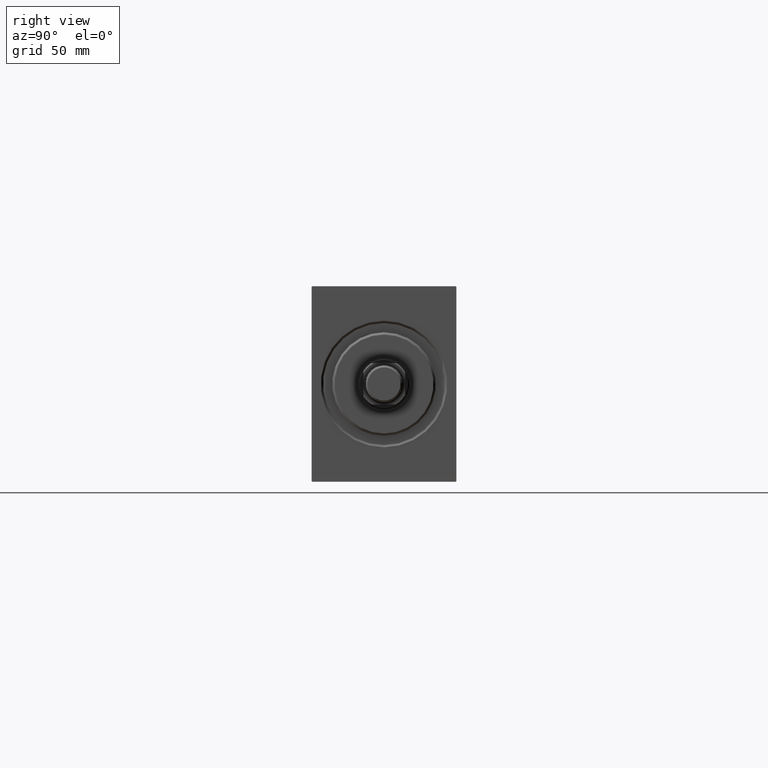
[diagram: clean part render]
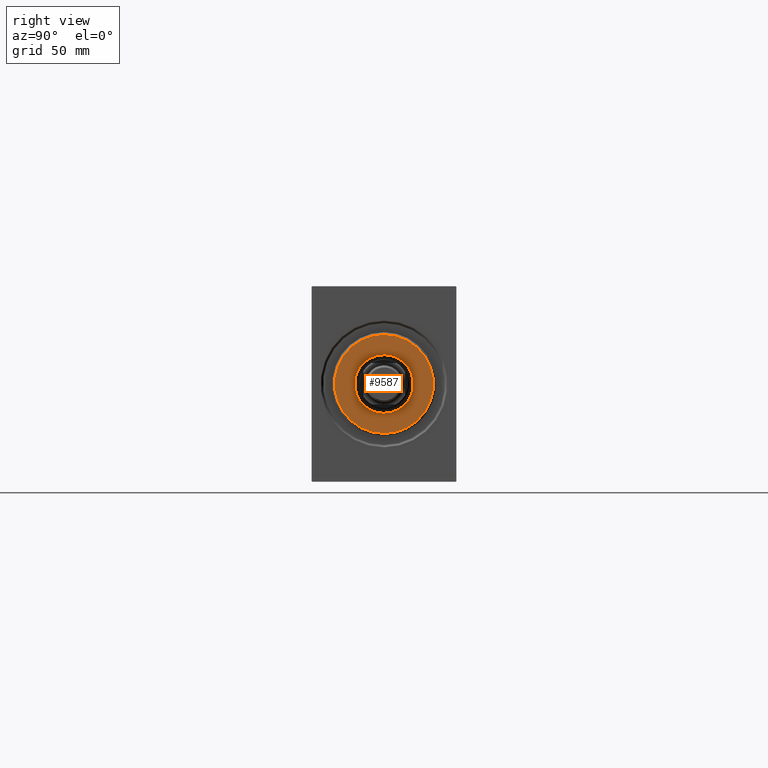
[diagram: same view with one face highlighted and labeled with its STEP entity id]
A machine part, right view. The second image highlights one B-rep face of the part: STEP entity #9587.
In plain terms, the highlighted planar face has unit normal (1, 0, 0).
Its self-contained STEP definition (entity closure, byte-faithful):
#957 = EDGE_LOOP ( 'NONE', ( #16686, #5684 ) ) ;
#2134 = EDGE_CURVE ( 'NONE', #30765, #30640, #21476, .T. ) ;
#3914 = DIRECTION ( 'NONE',  ( 1.000000000000000000, -0.000000000000000000, 0.000000000000000000 ) ) ;
#4622 = DIRECTION ( 'NONE',  ( 1.000000000000000000, -0.000000000000000000, 0.000000000000000000 ) ) ;
#5684 = ORIENTED_EDGE ( 'NONE', *, *, #33679, .T. ) ;
#6369 = DIRECTION ( 'NONE',  ( 0.000000000000000000, 0.000000000000000000, -1.000000000000000000 ) ) ;
#8024 = ORIENTED_EDGE ( 'NONE', *, *, #16732, .T. ) ;
#8605 = PLANE ( 'NONE',  #28939 ) ;
#9470 = DIRECTION ( 'NONE',  ( -1.000000000000000000, 0.000000000000000000, -0.000000000000000000 ) ) ;
#9550 = CARTESIAN_POINT ( 'NONE',  ( 3.000000000000000000, 0.000000000000000000, 21.50000000000001066 ) ) ;
#9587 = ADVANCED_FACE ( 'NONE', ( #34897, #28932 ), #8605, .T. ) ;
#10033 = CARTESIAN_POINT ( 'NONE',  ( 3.000000000000000000, 0.000000000000000000, 12.75000000000000000 ) ) ;
#10328 = VERTEX_POINT ( 'NONE', #9550 ) ;
#11339 = EDGE_LOOP ( 'NONE', ( #18961, #8024 ) ) ;
#11370 = DIRECTION ( 'NONE',  ( 0.000000000000000000, 0.000000000000000000, -1.000000000000000000 ) ) ;
#11610 = AXIS2_PLACEMENT_3D ( 'NONE', #12784, #9470, #13439 ) ;
#12470 = CARTESIAN_POINT ( 'NONE',  ( 3.000000000000000000, 1.561424668912874914E-15, -12.75000000000000000 ) ) ;
#12784 = CARTESIAN_POINT ( 'NONE',  ( 3.000000000000000000, 0.000000000000000000, 0.000000000000000000 ) ) ;
#13439 = DIRECTION ( 'NONE',  ( 0.000000000000000000, 0.000000000000000000, -1.000000000000000000 ) ) ;
#14686 = DIRECTION ( 'NONE',  ( 1.000000000000000000, -0.000000000000000000, 0.000000000000000000 ) ) ;
#14974 = DIRECTION ( 'NONE',  ( 0.000000000000000000, 0.000000000000000000, -1.000000000000000000 ) ) ;
#16686 = ORIENTED_EDGE ( 'NONE', *, *, #39111, .T. ) ;
#16732 = EDGE_CURVE ( 'NONE', #30640, #30765, #29045, .T. ) ;
#18293 = CIRCLE ( 'NONE', #34495, 21.50000000000001066 ) ;
#18961 = ORIENTED_EDGE ( 'NONE', *, *, #2134, .T. ) ;
#20988 = CIRCLE ( 'NONE', #28044, 21.50000000000001066 ) ;
#21321 = CARTESIAN_POINT ( 'NONE',  ( 3.000000000000000000, 0.000000000000000000, 0.000000000000000000 ) ) ;
#21476 = CIRCLE ( 'NONE', #11610, 12.75000000000000000 ) ;
#25626 = CARTESIAN_POINT ( 'NONE',  ( 3.000000000000000000, 0.000000000000000000, 0.000000000000000000 ) ) ;
#27590 = DIRECTION ( 'NONE',  ( -1.000000000000000000, 0.000000000000000000, -0.000000000000000000 ) ) ;
#28044 = AXIS2_PLACEMENT_3D ( 'NONE', #21321, #14686, #11370 ) ;
#28932 = FACE_BOUND ( 'NONE', #11339, .T. ) ;
#28939 = AXIS2_PLACEMENT_3D ( 'NONE', #25626, #4622, #39085 ) ;
#29045 = CIRCLE ( 'NONE', #33993, 12.75000000000000000 ) ;
#30640 = VERTEX_POINT ( 'NONE', #12470 ) ;
#30765 = VERTEX_POINT ( 'NONE', #10033 ) ;
#31064 = VERTEX_POINT ( 'NONE', #38806 ) ;
#33679 = EDGE_CURVE ( 'NONE', #31064, #10328, #20988, .T. ) ;
#33993 = AXIS2_PLACEMENT_3D ( 'NONE', #35070, #27590, #14974 ) ;
#34495 = AXIS2_PLACEMENT_3D ( 'NONE', #37070, #3914, #6369 ) ;
#34897 = FACE_OUTER_BOUND ( 'NONE', #957, .T. ) ;
#35070 = CARTESIAN_POINT ( 'NONE',  ( 3.000000000000000000, 0.000000000000000000, 0.000000000000000000 ) ) ;
#37070 = CARTESIAN_POINT ( 'NONE',  ( 3.000000000000000000, 0.000000000000000000, 0.000000000000000000 ) ) ;
#38806 = CARTESIAN_POINT ( 'NONE',  ( 3.000000000000000000, 2.694222958124177993E-15, -21.50000000000001066 ) ) ;
#39085 = DIRECTION ( 'NONE',  ( 0.000000000000000000, 0.000000000000000000, -1.000000000000000000 ) ) ;
#39111 = EDGE_CURVE ( 'NONE', #10328, #31064, #18293, .T. ) ;